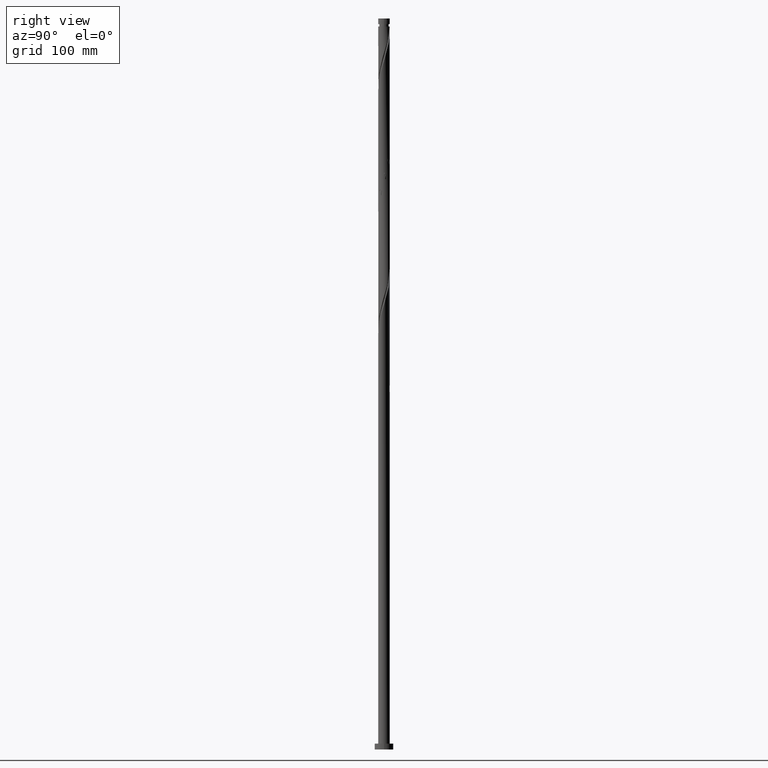
[diagram: clean part render]
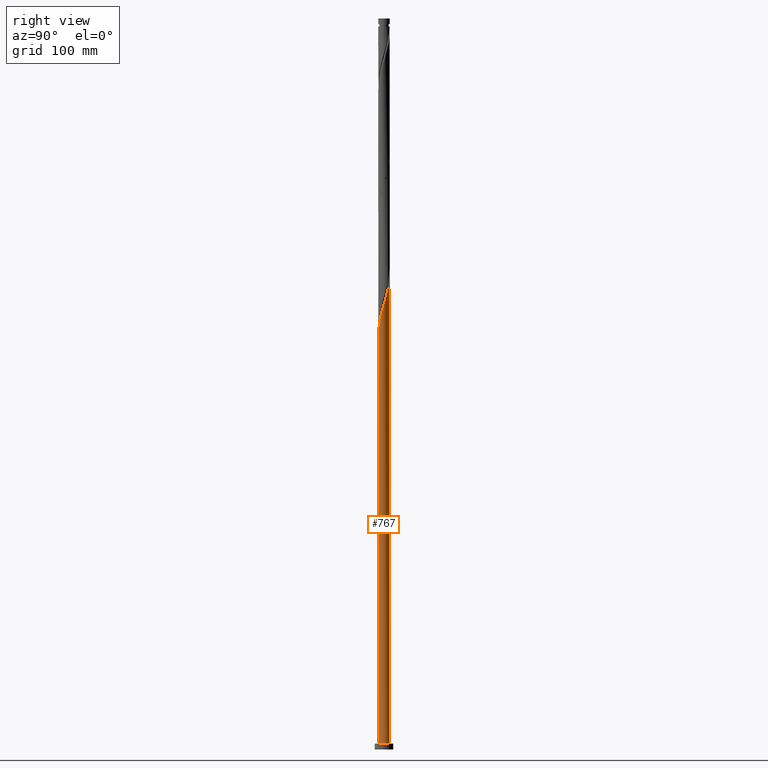
[diagram: same view with one face highlighted and labeled with its STEP entity id]
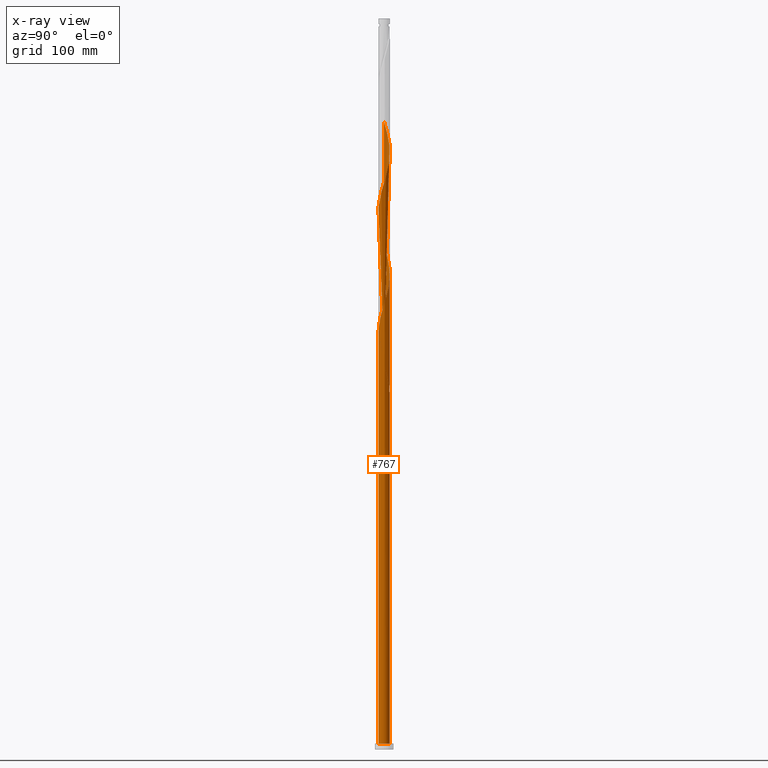
[diagram: x-ray of the same camera — body ghosted, the highlighted face saturated]
A machine part, right view. The second image highlights one B-rep face of the part: STEP entity #767.
The next image is the same camera in x-ray: the body ghosted, the highlighted face saturated — about 0% of this face is hidden behind the body in this view.
In plain terms, the highlighted cylindrical surface (bore or boss wall) has radius 5 mm, axis along (-0, -0, -1).
Its self-contained STEP definition (entity closure, byte-faithful):
#9 = CARTESIAN_POINT ( 'NONE',  ( -2.307797741308303952, 4.459678617185782734, 417.7733349521095079 ) ) ;
#15 = CARTESIAN_POINT ( 'NONE',  ( -4.829804191874033314, 1.293441714247733021, 536.6703937756391269 ) ) ;
#18 = CARTESIAN_POINT ( 'NONE',  ( 4.509898306035858617, -2.158892602519858706, 376.0821584815214464 ) ) ;
#28 = CARTESIAN_POINT ( 'NONE',  ( -0.3855890747245868111, -5.006594136618707225, 356.0086290697566938 ) ) ;
#59 = CARTESIAN_POINT ( 'NONE',  ( 3.762979039183500074, -3.324853761300999189, 371.4498055403449825 ) ) ;
#62 = ORIENTED_EDGE ( 'NONE', *, *, #1199, .F. ) ;
#68 = CARTESIAN_POINT ( 'NONE',  ( -5.020814560021389816, -0.07800600777514518636, 436.3027467168155908 ) ) ;
#78 = CARTESIAN_POINT ( 'NONE',  ( -4.509898306035859505, 2.158892602519858261, 428.5821584815213896 ) ) ;
#79 = CARTESIAN_POINT ( 'NONE',  ( -0.9949874371066272927, 4.900000000000007461, 308.1409820109331577 ) ) ;
#83 = CIRCLE ( 'NONE', #1964, 5.000000000000000888 ) ;
#92 = EDGE_CURVE ( 'NONE', #640, #1025, #2049, .T. ) ;
#93 = CARTESIAN_POINT ( 'NONE',  ( 0.9949874371066280698, -4.900000000000006573, 465.6409820109331008 ) ) ;
#99 = CARTESIAN_POINT ( 'NONE',  ( -3.310670521310491221, 3.746926833996858885, 323.5821584815213896 ) ) ;
#104 = CARTESIAN_POINT ( 'NONE',  ( -3.657874423950751464, -3.440148031986232979, 448.6556878932861423 ) ) ;
#114 = CARTESIAN_POINT ( 'NONE',  ( 3.310670521310499659, 3.746926833996863326, 502.6998055403448689 ) ) ;
#119 = VECTOR ( 'NONE', #225, 1000.000000000000000 ) ;
#146 = CARTESIAN_POINT ( 'NONE',  ( 4.653591125987692756, 1.886465853255867575, 389.9792173050507245 ) ) ;
#156 = CARTESIAN_POINT ( 'NONE',  ( 4.709949166430296152, -1.740988981301822447, 377.6262761285802299 ) ) ;
#157 = ORIENTED_EDGE ( 'NONE', *, *, #92, .T. ) ;
#160 = CARTESIAN_POINT ( 'NONE',  ( -5.000000000000010658, 2.957871199948856038E-15, 541.0427732362393272 ) ) ;
#166 = CARTESIAN_POINT ( 'NONE',  ( -5.000000000000007994, -0.2700999183963300188, 331.9466924682519107 ) ) ;
#173 = CARTESIAN_POINT ( 'NONE',  ( -3.657874423950751464, -3.440148031986232979, 343.6556878932861991 ) ) ;
#177 = EDGE_CURVE ( 'NONE', #640, #740, #1285, .T. ) ;
#211 = CARTESIAN_POINT ( 'NONE',  ( -4.653591125987692756, -1.886465853255866687, 337.4792173050508381 ) ) ;
#215 = EDGE_LOOP ( 'NONE', ( #1745, #849, #1785, #556, #1433, #784, #1494, #157, #62 ) ) ;
#222 = CARTESIAN_POINT ( 'NONE',  ( 3.762979039183500074, -3.324853761300999189, 476.4498055403449257 ) ) ;
#225 = DIRECTION ( 'NONE',  ( -0.000000000000000000, -0.000000000000000000, -1.000000000000000000 ) ) ;
#230 = CARTESIAN_POINT ( 'NONE',  ( 3.087966894742087298, -3.959687391745552620, 473.3615702462271315 ) ) ;
#241 = CARTESIAN_POINT ( 'NONE',  ( -0.9949874371066272927, 4.900000000000006573, 518.1409820109332713 ) ) ;
#252 = CARTESIAN_POINT ( 'NONE',  ( -4.949659217317769588, 0.8458944471936454823, 433.2145114226979672 ) ) ;
#258 = CARTESIAN_POINT ( 'NONE',  ( 0.5409355705206818632, 4.992199163887311109, 309.6850996579919411 ) ) ;
#263 = CARTESIAN_POINT ( 'NONE',  ( 4.920992084686811374, 0.9992500617070458890, 491.8909820109331577 ) ) ;
#285 = CIRCLE ( 'NONE', #1815, 5.000000000000000888 ) ;
#294 = VERTEX_POINT ( 'NONE', #1885 ) ;
#315 = CARTESIAN_POINT ( 'NONE',  ( 4.829804191874032426, -1.293441714247731911, 379.1703937756390133 ) ) ;
#319 = CARTESIAN_POINT ( 'NONE',  ( -4.509898306035859505, 2.158892602519858261, 533.5821584815213328 ) ) ;
#322 = CARTESIAN_POINT ( 'NONE',  ( 2.307797741308303952, -4.459678617185782734, 365.2733349521096216 ) ) ;
#330 = CARTESIAN_POINT ( 'NONE',  ( -1.298982946493230761, -4.850495550775359099, 352.9203937756390701 ) ) ;
#338 = CARTESIAN_POINT ( 'NONE',  ( -0.5409355705206825293, 4.992199163887320879, 411.5968643638742606 ) ) ;
#375 = CARTESIAN_POINT ( 'NONE',  ( 4.949659217317769588, -0.8458944471936451492, 380.7145114226977967 ) ) ;
#387 = CARTESIAN_POINT ( 'NONE',  ( 2.565804065323806338, 4.291462396243024280, 505.7880408344624925 ) ) ;
#397 = CARTESIAN_POINT ( 'NONE',  ( 4.653591125987692756, 1.886465853255867575, 494.9792173050507813 ) ) ;
#403 = DIRECTION ( 'NONE',  ( 1.000000000000000000, 0.000000000000000000, 0.000000000000000000 ) ) ;
#406 = CARTESIAN_POINT ( 'NONE',  ( 3.425472966962795685, -3.642270576523275238, 474.9056878932862560 ) ) ;
#412 = CARTESIAN_POINT ( 'NONE',  ( -0.8422860106089054000, 4.928544843697026501, 314.3174525991685186 ) ) ;
#418 = CARTESIAN_POINT ( 'NONE',  ( 4.309847445641426411, -2.576796223737892966, 479.5380408344625494 ) ) ;
#422 = CARTESIAN_POINT ( 'NONE',  ( 0.9949874371066290690, 4.899999999999999467, 308.1409820109331577 ) ) ;
#456 = CARTESIAN_POINT ( 'NONE',  ( -4.440654414424053620, 2.297953082997162610, 329.7586290697567506 ) ) ;
#468 = CARTESIAN_POINT ( 'NONE',  ( 1.878418522500438614, -4.633739726649237944, 363.7292173050508381 ) ) ;
#472 = CARTESIAN_POINT ( 'NONE',  ( -5.000000000000007994, 0.1922559394384287523, 540.3993674841793791 ) ) ;
#474 = CARTESIAN_POINT ( 'NONE',  ( -3.310670521310499215, -3.746926833996863326, 345.1998055403449825 ) ) ;
#480 = CARTESIAN_POINT ( 'NONE',  ( 1.298982946493228541, 4.850495550775359987, 405.4203937756391269 ) ) ;
#489 = CARTESIAN_POINT ( 'NONE',  ( 4.440654414424064278, 2.297953082997165719, 391.5233349521096784 ) ) ;
#507 = LINE ( 'NONE', #1154, #119 ) ;
#524 = CARTESIAN_POINT ( 'NONE',  ( 0.9949874371066280698, -4.900000000000006573, 360.6409820109332713 ) ) ;
#536 = CARTESIAN_POINT ( 'NONE',  ( 4.829804191874032426, -1.293441714247731911, 484.1703937756391269 ) ) ;
#539 = DIRECTION ( 'NONE',  ( 0.000000000000000000, -0.000000000000000000, -1.000000000000000000 ) ) ;
#550 = CARTESIAN_POINT ( 'NONE',  ( 0.3855890747245875327, 5.006594136618707225, 513.5086290697565801 ) ) ;
#556 = ORIENTED_EDGE ( 'NONE', *, *, #1725, .T. ) ;
#562 = CARTESIAN_POINT ( 'NONE',  ( -4.309847445641425523, 2.576796223737893410, 427.0380408344624925 ) ) ;
#569 = CARTESIAN_POINT ( 'NONE',  ( -2.565804065323801897, 4.291462396243016286, 320.4939231874037660 ) ) ;
#574 = CARTESIAN_POINT ( 'NONE',  ( -2.168141511977371039, -4.529219156478549557, 454.8321584815213328 ) ) ;
#575 = CARTESIAN_POINT ( 'NONE',  ( -4.829804191874033314, 1.293441714247733021, 326.6703937756390701 ) ) ;
#585 = CARTESIAN_POINT ( 'NONE',  ( -4.920992084686811374, -0.9992500617070465552, 439.3909820109331008 ) ) ;
#586 = CARTESIAN_POINT ( 'NONE',  ( -3.425472966962794352, 3.642270576523276127, 317.4056878932860286 ) ) ;
#620 = CARTESIAN_POINT ( 'NONE',  ( -3.942796063405592744, -3.074794172362347755, 342.1115702462273589 ) ) ;
#623 =( BOUNDED_CURVE ( )  B_SPLINE_CURVE ( 2, ( #762, #1904, #2019, #745, #1402, #2051, #456, #947, #1221, #1055, #99, #731, #569, #1211, #1549, #1863, #412, #752, #1692, #258, #422 ),
 .UNSPECIFIED., .F., .T. ) 
 B_SPLINE_CURVE_WITH_KNOTS ( ( 3, 2, 2, 2, 2, 2, 2, 2, 2, 2, 3 ),
 ( 0.9295293573162904943, 0.9338235294117647189, 0.9411764705882352811, 0.9485294117647058432, 0.9558823529411765163, 0.9632352941176470784, 0.9705882352941176405, 0.9779411764705882026, 0.9852941176470588758, 0.9926470588235294379, 1.000000000000000000 ),
 .UNSPECIFIED. ) 
 CURVE ( )  GEOMETRIC_REPRESENTATION_ITEM ( )  RATIONAL_B_SPLINE_CURVE ( ( 0.9072066346053203612, 0.9068261157890875612, 0.9090909090909587986, 0.9052128875409900521, 0.9090909090909587986, 0.9052128875409900521, 0.9090909090909587986, 0.9052128875409900521, 0.9090909090909587986, 0.9052128875409900521, 0.9090909090909587986, 0.9052128875409900521, 0.9090909090909587986, 0.9052128875409900521, 0.9090909090909587986, 0.9052128875409900521, 0.9090909090909587986, 0.9052128875409900521, 0.9090909090909587986, 0.9052128875409900521, 0.9090909090909587986 ) ) 
 REPRESENTATION_ITEM ( '' )  );
#633 = CARTESIAN_POINT ( 'NONE',  ( -2.697882318025195847, 4.209683004465667011, 419.3174525991683481 ) ) ;
#640 = VERTEX_POINT ( 'NONE', #1272 ) ;
#641 = CARTESIAN_POINT ( 'NONE',  ( 4.985236888669578370, -0.3839442197092513553, 382.2586290697568074 ) ) ;
#652 = CARTESIAN_POINT ( 'NONE',  ( -2.168141511977371039, -4.529219156478549557, 349.8321584815213328 ) ) ;
#687 = CARTESIAN_POINT ( 'NONE',  ( 1.733562229235301677, 4.689857353626955216, 403.8762761285801730 ) ) ;
#689 = DIRECTION ( 'NONE',  ( -1.000000000000000000, 0.000000000000000000, 0.000000000000000000 ) ) ;
#702 = CARTESIAN_POINT ( 'NONE',  ( -2.963466618670244745, -4.053705636007495450, 451.7439231874037091 ) ) ;
#709 = VERTEX_POINT ( 'NONE', #1302 ) ;
#714 = CARTESIAN_POINT ( 'NONE',  ( 4.440654414424064278, 2.297953082997165719, 496.5233349521096216 ) ) ;
#715 = CARTESIAN_POINT ( 'NONE',  ( -2.307797741308303952, 4.459678617185782734, 312.7733349521096216 ) ) ;
#725 = CARTESIAN_POINT ( 'NONE',  ( -2.307797741308303952, 4.459678617185782734, 522.7733349521096216 ) ) ;
#726 = CARTESIAN_POINT ( 'NONE',  ( -4.309847445641425523, 2.576796223737893410, 322.0380408344624357 ) ) ;
#731 = CARTESIAN_POINT ( 'NONE',  ( -2.963466618670239416, 4.053705636007489232, 322.0380408344626062 ) ) ;
#737 = CARTESIAN_POINT ( 'NONE',  ( 2.963466618670242525, 4.053705636007496338, 504.2439231874038796 ) ) ;
#740 = VERTEX_POINT ( 'NONE', #1952 ) ;
#745 = CARTESIAN_POINT ( 'NONE',  ( -4.920992084686805157, 0.9992500617070461111, 334.3909820109331577 ) ) ;
#750 = CARTESIAN_POINT ( 'NONE',  ( 1.733562229235301677, 4.689857353626955216, 508.8762761285801162 ) ) ;
#752 = CARTESIAN_POINT ( 'NONE',  ( -0.3855890747245842576, 5.006594136618700119, 312.7733349521096216 ) ) ;
#762 = CARTESIAN_POINT ( 'NONE',  ( -5.000000000000000888, -6.498353393827081133E-15, 337.7391907856272724 ) ) ;
#766 = AXIS2_PLACEMENT_3D ( 'NONE', #992, #539, #689 ) ;
#767 = ADVANCED_FACE ( 'NONE', ( #1470 ), #1920, .T. ) ;
#769 = CARTESIAN_POINT ( 'NONE',  ( -3.425472966962794352, 3.642270576523276127, 527.4056878932860855 ) ) ;
#784 = ORIENTED_EDGE ( 'NONE', *, *, #1072, .F. ) ;
#785 = CARTESIAN_POINT ( 'NONE',  ( 3.657874423950751464, 3.440148031986232535, 396.1556878932861423 ) ) ;
#795 = CARTESIAN_POINT ( 'NONE',  ( -0.9949874371066272927, 4.900000000000006573, 413.1409820109331577 ) ) ;
#802 = CARTESIAN_POINT ( 'NONE',  ( -3.762979039183500518, 3.324853761300999189, 528.9498055403448689 ) ) ;
#806 = CARTESIAN_POINT ( 'NONE',  ( 3.087966894742087298, -3.959687391745552620, 368.3615702462273021 ) ) ;
#817 = CARTESIAN_POINT ( 'NONE',  ( 1.449039303692575498, -4.807800836112694043, 362.1850996579919979 ) ) ;
#849 = ORIENTED_EDGE ( 'NONE', *, *, #1293, .F. ) ;
#857 = CARTESIAN_POINT ( 'NONE',  ( 4.920992084686811374, 0.9992500617070458890, 386.8909820109331577 ) ) ;
#868 = CARTESIAN_POINT ( 'NONE',  ( -4.829804191874033314, 1.293441714247733021, 431.6703937756390133 ) ) ;
#873 = CARTESIAN_POINT ( 'NONE',  ( 5.000000000000000888, 0.000000000000000000, 5.000000000000000000 ) ) ;
#879 = CARTESIAN_POINT ( 'NONE',  ( 4.949659217317769588, -0.8458944471936451492, 485.7145114226977967 ) ) ;
#880 = CARTESIAN_POINT ( 'NONE',  ( -4.709949166430296152, 1.740988981301821115, 325.1262761285802299 ) ) ;
#887 = CARTESIAN_POINT ( 'NONE',  ( -1.878418522500439947, 4.633739726649237944, 521.2292173050508381 ) ) ;
#899 = CARTESIAN_POINT ( 'NONE',  ( 3.657874423950751464, 3.440148031986232535, 501.1556878932861423 ) ) ;
#912 = CARTESIAN_POINT ( 'NONE',  ( 4.787291605337252953, 1.442857957481454845, 493.4350996579919979 ) ) ;
#915 = VERTEX_POINT ( 'NONE', #873 ) ;
#919 = CARTESIAN_POINT ( 'NONE',  ( -2.697882318025195847, 4.209683004465667011, 524.3174525991685186 ) ) ;
#947 = CARTESIAN_POINT ( 'NONE',  ( -4.227717702860424254, 2.709440312738462087, 328.2145114226979103 ) ) ;
#952 = CARTESIAN_POINT ( 'NONE',  ( -4.949659217317769588, 0.8458944471936454823, 538.2145114226977967 ) ) ;
#958 = CARTESIAN_POINT ( 'NONE',  ( 4.036413242412463021, -2.950824992519446521, 372.9939231874037660 ) ) ;
#965 = CARTESIAN_POINT ( 'NONE',  ( 4.787291605337252953, 1.442857957481454845, 388.4350996579919979 ) ) ;
#971 = CARTESIAN_POINT ( 'NONE',  ( 0.07767324789804790075, -4.999396650253013163, 357.5527467168154772 ) ) ;
#982 = CARTESIAN_POINT ( 'NONE',  ( -1.449039303692575054, 4.807800836112694043, 414.6850996579921116 ) ) ;
#992 = CARTESIAN_POINT ( 'NONE',  ( 0.000000000000000000, 0.000000000000000000, 308.1409820109331577 ) ) ;
#1016 = VERTEX_POINT ( 'NONE', #1641 ) ;
#1023 = CARTESIAN_POINT ( 'NONE',  ( 0.07767324789804790075, -4.999396650253013163, 462.5527467168155340 ) ) ;
#1025 = VERTEX_POINT ( 'NONE', #1315 ) ;
#1032 = CARTESIAN_POINT ( 'NONE',  ( -3.310670521310499215, -3.746926833996863326, 450.1998055403448689 ) ) ;
#1040 = DIRECTION ( 'NONE',  ( 0.000000000000000000, 0.000000000000000000, 1.000000000000000000 ) ) ;
#1043 = CARTESIAN_POINT ( 'NONE',  ( -1.298982946493230761, -4.850495550775359099, 457.9203937756390133 ) ) ;
#1051 = CARTESIAN_POINT ( 'NONE',  ( 4.036413242412463021, -2.950824992519446521, 477.9939231874038796 ) ) ;
#1055 = CARTESIAN_POINT ( 'NONE',  ( -3.657874423950744358, 3.440148031986227650, 325.1262761285802299 ) ) ;
#1060 = CARTESIAN_POINT ( 'NONE',  ( 4.970903322354101483, 0.5386280347410964398, 490.3468643638743174 ) ) ;
#1061 = CARTESIAN_POINT ( 'NONE',  ( -4.985236888669578370, 0.3839442197092495235, 329.7586290697568074 ) ) ;
#1072 = EDGE_CURVE ( 'NONE', #740, #1016, #507, .T. ) ;
#1081 = CARTESIAN_POINT ( 'NONE',  ( -4.036413242412463021, 2.950824992519446521, 320.4939231874037091 ) ) ;
#1082 = VECTOR ( 'NONE', #1541, 1000.000000000000000 ) ;
#1101 = CARTESIAN_POINT ( 'NONE',  ( -3.087966894742088186, 3.959687391745552620, 525.8615702462271884 ) ) ;
#1105 = CARTESIAN_POINT ( 'NONE',  ( 0.8422860106089081755, 4.928544843697034494, 406.9645114226979672 ) ) ;
#1114 = CARTESIAN_POINT ( 'NONE',  ( -2.565804065323806782, -4.291462396243023392, 348.2880408344626062 ) ) ;
#1126 = CARTESIAN_POINT ( 'NONE',  ( -3.425472966962794352, 3.642270576523276127, 422.4056878932862560 ) ) ;
#1135 = CARTESIAN_POINT ( 'NONE',  ( 3.942796063405590079, 3.074794172362349531, 394.6115702462273589 ) ) ;
#1150 = DIRECTION ( 'NONE',  ( -0.000000000000000000, -0.000000000000000000, -1.000000000000000000 ) ) ;
#1154 = CARTESIAN_POINT ( 'NONE',  ( -5.000000000000000888, 0.000000000000000000, 630.0000000000000000 ) ) ;
#1171 = CARTESIAN_POINT ( 'NONE',  ( -4.227717702860432247, -2.709440312738463863, 340.5674525991684050 ) ) ;
#1178 = LINE ( 'NONE', #1695, #1082 ) ;
#1181 = CARTESIAN_POINT ( 'NONE',  ( -4.787291605337252065, -1.442857957481456399, 440.9350996579920547 ) ) ;
#1191 = CARTESIAN_POINT ( 'NONE',  ( -0.07767324789804946894, 4.999396650253013163, 515.0527467168157045 ) ) ;
#1199 = EDGE_CURVE ( 'NONE', #294, #1025, #623, .T. ) ;
#1206 = CARTESIAN_POINT ( 'NONE',  ( -4.709949166430296152, 1.740988981301821115, 430.1262761285802867 ) ) ;
#1211 = CARTESIAN_POINT ( 'NONE',  ( -2.168141511977365710, 4.529219156478543340, 318.9498055403450394 ) ) ;
#1219 = CARTESIAN_POINT ( 'NONE',  ( -2.565804065323806782, -4.291462396243023392, 453.2880408344624925 ) ) ;
#1221 = CARTESIAN_POINT ( 'NONE',  ( -3.942796063405584750, 3.074794172362344646, 326.6703937756390701 ) ) ;
#1227 = CARTESIAN_POINT ( 'NONE',  ( -4.970903322354099707, -0.5386280347410958846, 437.8468643638742606 ) ) ;
#1228 = CARTESIAN_POINT ( 'NONE',  ( -4.509898306035859505, 2.158892602519858261, 323.5821584815211622 ) ) ;
#1258 = CARTESIAN_POINT ( 'NONE',  ( -4.709949166430296152, 1.740988981301821115, 535.1262761285801162 ) ) ;
#1263 = CARTESIAN_POINT ( 'NONE',  ( 2.697882318025196735, -4.209683004465666123, 366.8174525991684618 ) ) ;
#1269 =( BOUNDED_CURVE ( )  B_SPLINE_CURVE ( 2, ( #1922, #166, #1443, #1577, #2070, #211, #1755, #1171, #620, #173, #474, #1980, #1114, #652, #1492, #330, #1811, #28, #971, #1618, #524, #817, #468, #322, #1263, #806, #1914, #59, #958, #1944, #18, #156, #315, #375, #641, #1607, #1288, #857, #965, #146, #489, #1296, #1135, #785, #1423, #1586, #1772, #1932, #687, #480, #1105, #1453, #1746, #338, #795, #982, #1434, #9, #633, #1764, #1126, #1278, #1697, #562, #78, #1206, #868, #252, #2004, #68, #1227, #585, #1181, #2013, #2026, #1824, #1869, #104, #1032, #702, #1219, #574, #1847, #1043, #2036, #1341, #1023, #1525, #93, #1657, #1504, #1861, #1667, #230, #406, #222, #1051, #418, #1534, #1376, #536, #879, #1993, #1688, #1060, #263, #912, #397, #714, #1543, #1676, #899, #114, #737, #387, #1362, #750, #1353, #1515, #550, #1191, #1836, #241, #1385, #887, #725, #919, #1101, #769, #802, #2055, #1581, #319, #1258, #15, #952, #1908, #472, #160 ),
 .UNSPECIFIED., .F., .T. ) 
 B_SPLINE_CURVE_WITH_KNOTS ( ( 3, 2, 2, 2, 2, 2, 2, 2, 2, 2, 2, 2, 2, 2, 2, 2, 2, 2, 2, 2, 2, 2, 2, 2, 2, 2, 2, 2, 2, 2, 2, 2, 2, 2, 2, 2, 2, 2, 2, 2, 2, 2, 2, 2, 2, 2, 2, 2, 2, 2, 2, 2, 2, 2, 2, 2, 2, 2, 2, 2, 2, 2, 2, 2, 2, 2, 2, 2, 2, 3 ),
 ( 0.05452935731629052901, 0.05882352941176471894, 0.06617647058823528106, 0.07352941176470584317, 0.08088235294117651630, 0.08823529411764707842, 0.09558823529411764053, 0.1029411764705882026, 0.1102941176470588758, 0.1176470588235294379, 0.1250000000000000000, 0.1323529411764705621, 0.1397058823529411242, 0.1470588235294117974, 0.1544117647058823595, 0.1617647058823529216, 0.1691176470588234837, 0.1764705882352941568, 0.1838235294117647189, 0.1911764705882352811, 0.1985294117647058432, 0.2058823529411765163, 0.2132352941176470784, 0.2205882352941176405, 0.2279411764705882026, 0.2352941176470588758, 0.2426470588235294379, 0.2500000000000000000, 0.2573529411764705621, 0.2647058823529411242, 0.2720588235294117974, 0.2794117647058823595, 0.2867647058823529216, 0.2941176470588234837, 0.3014705882352941568, 0.3088235294117647189, 0.3161764705882352811, 0.3235294117647058432, 0.3308823529411765163, 0.3382352941176470784, 0.3455882352941176405, 0.3529411764705882026, 0.3602941176470588758, 0.3676470588235294379, 0.3750000000000000000, 0.3823529411764705621, 0.3897058823529411242, 0.3970588235294117974, 0.4044117647058823595, 0.4117647058823529216, 0.4191176470588234837, 0.4264705882352941568, 0.4338235294117647189, 0.4411764705882352811, 0.4485294117647058432, 0.4558823529411765163, 0.4632352941176470784, 0.4705882352941176405, 0.4779411764705882026, 0.4852941176470588758, 0.4926470588235294379, 0.5000000000000000000, 0.5073529411764705621, 0.5147058823529411242, 0.5220588235294116863, 0.5294117647058823595, 0.5367647058823529216, 0.5441176470588235947, 0.5514705882352941568, 0.5545293573162901613 ),
 .UNSPECIFIED. ) 
 CURVE ( )  GEOMETRIC_REPRESENTATION_ITEM ( )  RATIONAL_B_SPLINE_CURVE ( ( 0.9072066346053275776, 0.9068261157890947777, 0.9090909090909660151, 0.9052128875409971576, 0.9090909090909660151, 0.9052128875409971576, 0.9090909090909660151, 0.9052128875409971576, 0.9090909090909660151, 0.9052128875409971576, 0.9090909090909660151, 0.9052128875409971576, 0.9090909090909660151, 0.9052128875409971576, 0.9090909090909660151, 0.9052128875409971576, 0.9090909090909660151, 0.9052128875409971576, 0.9090909090909660151, 0.9052128875409971576, 0.9090909090909660151, 0.9052128875409971576, 0.9090909090909660151, 0.9052128875409971576, 0.9090909090909660151, 0.9052128875409971576, 0.9090909090909660151, 0.9052128875409971576, 0.9090909090909660151, 0.9052128875409971576, 0.9090909090909660151, 0.9052128875409971576, 0.9090909090909660151, 0.9052128875409971576, 0.9090909090909660151, 0.9052128875409971576, 0.9090909090909660151, 0.9052128875409971576, 0.9090909090909660151, 0.9052128875409971576, 0.9090909090909660151, 0.9052128875409971576, 0.9090909090909660151, 0.9052128875409971576, 0.9090909090909660151, 0.9052128875409971576, 0.9090909090909660151, 0.9052128875409971576, 0.9090909090909660151, 0.9052128875409971576, 0.9090909090909660151, 0.9052128875409971576, 0.9090909090909660151, 0.9052128875409971576, 0.9090909090909660151, 0.9052128875409971576, 0.9090909090909660151, 0.9052128875409971576, 0.9090909090909660151, 0.9052128875409971576, 0.9090909090909660151, 0.9052128875409971576, 0.9090909090909660151, 0.9052128875409971576, 0.9090909090909660151, 0.9052128875409971576, 0.9090909090909660151, 0.9052128875409971576, 0.9090909090909660151, 0.9052128875409971576, 0.9090909090909660151, 0.9052128875409971576, 0.9090909090909660151, 0.9052128875409971576, 0.9090909090909660151, 0.9052128875409971576, 0.9090909090909660151, 0.9052128875409971576, 0.9090909090909660151, 0.9052128875409971576, 0.9090909090909660151, 0.9052128875409971576, 0.9090909090909660151, 0.9052128875409971576, 0.9090909090909660151, 0.9052128875409971576, 0.9090909090909660151, 0.9052128875409971576, 0.9090909090909660151, 0.9052128875409971576, 0.9090909090909660151, 0.9052128875409971576, 0.9090909090909660151, 0.9052128875409971576, 0.9090909090909660151, 0.9052128875409971576, 0.9090909090909660151, 0.9052128875409971576, 0.9090909090909660151, 0.9052128875409971576, 0.9090909090909660151, 0.9052128875409971576, 0.9090909090909660151, 0.9052128875409971576, 0.9090909090909660151, 0.9052128875409971576, 0.9090909090909660151, 0.9052128875409971576, 0.9090909090909660151, 0.9052128875409971576, 0.9090909090909660151, 0.9052128875409971576, 0.9090909090909660151, 0.9052128875409971576, 0.9090909090909660151, 0.9052128875409971576, 0.9090909090909660151, 0.9052128875409971576, 0.9090909090909660151, 0.9052128875409971576, 0.9090909090909660151, 0.9052128875409971576, 0.9090909090909660151, 0.9052128875409971576, 0.9090909090909660151, 0.9052128875409971576, 0.9090909090909660151, 0.9052128875409971576, 0.9090909090909660151, 0.9052128875409971576, 0.9090909090909660151, 0.9052128875409971576, 0.9090909090909660151, 0.9052128875409971576, 0.9090909090909660151, 0.9052128875409971576, 0.9090909090909660151, 0.9074776808428686170, 0.9072066346053276886 ) ) 
 REPRESENTATION_ITEM ( '' )  );
#1272 = CARTESIAN_POINT ( 'NONE',  ( -0.9949874371066272927, 4.900000000000007461, 308.1409820109331577 ) ) ;
#1278 = CARTESIAN_POINT ( 'NONE',  ( -3.762979039183500518, 3.324853761300999189, 423.9498055403448689 ) ) ;
#1283 = DIRECTION ( 'NONE',  ( 1.000000000000000000, 0.000000000000000000, 0.000000000000000000 ) ) ;
#1285 =( BOUNDED_CURVE ( )  B_SPLINE_CURVE ( 2, ( #79, #1677, #2037, #715, #1712, #1386, #586, #1837, #1081, #726, #1228, #880, #575, #1354, #1061, #1698, #1516 ),
 .UNSPECIFIED., .F., .T. ) 
 B_SPLINE_CURVE_WITH_KNOTS ( ( 3, 2, 2, 2, 2, 2, 2, 2, 3 ),
 ( 0.000000000000000000, 0.007352941176470562112, 0.01470588235294112422, 0.02205882352941180083, 0.02941176470588235947, 0.03676470588235292158, 0.04411764705882349064, 0.05147058823529415683, 0.05452935731629053595 ),
 .UNSPECIFIED. ) 
 CURVE ( )  GEOMETRIC_REPRESENTATION_ITEM ( )  RATIONAL_B_SPLINE_CURVE ( ( 0.9090909090909660151, 0.9052128875409971576, 0.9090909090909660151, 0.9052128875409971576, 0.9090909090909660151, 0.9052128875409971576, 0.9090909090909660151, 0.9052128875409971576, 0.9090909090909660151, 0.9052128875409971576, 0.9090909090909660151, 0.9052128875409971576, 0.9090909090909660151, 0.9052128875409971576, 0.9090909090909660151, 0.9074776808428683950, 0.9072066346053275776 ) ) 
 REPRESENTATION_ITEM ( '' )  );
#1288 = CARTESIAN_POINT ( 'NONE',  ( 4.970903322354101483, 0.5386280347410964398, 385.3468643638743174 ) ) ;
#1293 = EDGE_CURVE ( 'NONE', #740, #709, #1269, .T. ) ;
#1296 = CARTESIAN_POINT ( 'NONE',  ( 4.227717702860432247, 2.709440312738463863, 393.0674525991684618 ) ) ;
#1302 = CARTESIAN_POINT ( 'NONE',  ( -5.000000000000010658, 2.957871199948856038E-15, 541.0427732362393272 ) ) ;
#1315 = CARTESIAN_POINT ( 'NONE',  ( 0.9949874371066290690, 4.899999999999999467, 308.1409820109331577 ) ) ;
#1323 = DIRECTION ( 'NONE',  ( -1.000000000000000000, 0.000000000000000000, 0.000000000000000000 ) ) ;
#1341 = CARTESIAN_POINT ( 'NONE',  ( -0.3855890747245868111, -5.006594136618707225, 461.0086290697568643 ) ) ;
#1353 = CARTESIAN_POINT ( 'NONE',  ( 1.298982946493228541, 4.850495550775359987, 510.4203937756390701 ) ) ;
#1354 = CARTESIAN_POINT ( 'NONE',  ( -4.949659217317769588, 0.8458944471936454823, 328.2145114226978535 ) ) ;
#1355 = EDGE_CURVE ( 'NONE', #915, #1016, #285, .T. ) ;
#1362 = CARTESIAN_POINT ( 'NONE',  ( 2.168141511977371927, 4.529219156478548669, 507.3321584815212191 ) ) ;
#1376 = CARTESIAN_POINT ( 'NONE',  ( 4.709949166430296152, -1.740988981301822447, 482.6262761285802867 ) ) ;
#1385 = CARTESIAN_POINT ( 'NONE',  ( -1.449039303692575054, 4.807800836112694043, 519.6850996579919411 ) ) ;
#1386 = CARTESIAN_POINT ( 'NONE',  ( -3.087966894742088186, 3.959687391745552620, 315.8615702462273589 ) ) ;
#1402 = CARTESIAN_POINT ( 'NONE',  ( -4.787291605337244071, 1.442857957481454845, 332.8468643638743742 ) ) ;
#1423 = CARTESIAN_POINT ( 'NONE',  ( 3.310670521310499659, 3.746926833996863326, 397.6998055403448689 ) ) ;
#1433 = ORIENTED_EDGE ( 'NONE', *, *, #1355, .T. ) ;
#1434 = CARTESIAN_POINT ( 'NONE',  ( -1.878418522500439947, 4.633739726649237944, 416.2292173050507245 ) ) ;
#1443 = CARTESIAN_POINT ( 'NONE',  ( -4.970903322354099707, -0.5386280347410958846, 332.8468643638744311 ) ) ;
#1453 = CARTESIAN_POINT ( 'NONE',  ( 0.3855890747245875327, 5.006594136618707225, 408.5086290697565801 ) ) ;
#1470 = FACE_OUTER_BOUND ( 'NONE', #215, .T. ) ;
#1492 = CARTESIAN_POINT ( 'NONE',  ( -1.733562229235299235, -4.689857353626956105, 351.3762761285801730 ) ) ;
#1494 = ORIENTED_EDGE ( 'NONE', *, *, #177, .F. ) ;
#1504 = CARTESIAN_POINT ( 'NONE',  ( 1.878418522500438614, -4.633739726649237944, 468.7292173050508950 ) ) ;
#1513 = CARTESIAN_POINT ( 'NONE',  ( 0.000000000000000000, 0.000000000000000000, 5.000000000000000000 ) ) ;
#1515 = CARTESIAN_POINT ( 'NONE',  ( 0.8422860106089081755, 4.928544843697034494, 511.9645114226977398 ) ) ;
#1516 = CARTESIAN_POINT ( 'NONE',  ( -5.000000000000008882, -6.946515696849582906E-15, 331.0427732362392135 ) ) ;
#1525 = CARTESIAN_POINT ( 'NONE',  ( 0.5409355705206830844, -4.992199163887320879, 464.0968643638743174 ) ) ;
#1534 = CARTESIAN_POINT ( 'NONE',  ( 4.509898306035858617, -2.158892602519858706, 481.0821584815213896 ) ) ;
#1541 = DIRECTION ( 'NONE',  ( -0.000000000000000000, -0.000000000000000000, -1.000000000000000000 ) ) ;
#1543 = CARTESIAN_POINT ( 'NONE',  ( 4.227717702860432247, 2.709440312738463863, 498.0674525991684050 ) ) ;
#1549 = CARTESIAN_POINT ( 'NONE',  ( -1.733562229235295460, 4.689857353626948111, 317.4056878932861991 ) ) ;
#1554 = DIRECTION ( 'NONE',  ( 0.000000000000000000, 0.000000000000000000, 1.000000000000000000 ) ) ;
#1567 = EDGE_CURVE ( 'NONE', #709, #294, #1178, .T. ) ;
#1577 = CARTESIAN_POINT ( 'NONE',  ( -4.920992084686811374, -0.9992500617070465552, 334.3909820109331008 ) ) ;
#1581 = CARTESIAN_POINT ( 'NONE',  ( -4.309847445641425523, 2.576796223737893410, 532.0380408344625494 ) ) ;
#1586 = CARTESIAN_POINT ( 'NONE',  ( 2.963466618670242525, 4.053705636007496338, 399.2439231874037091 ) ) ;
#1607 = CARTESIAN_POINT ( 'NONE',  ( 5.020814560021389816, 0.07800600777514697659, 383.8027467168154772 ) ) ;
#1618 = CARTESIAN_POINT ( 'NONE',  ( 0.5409355705206830844, -4.992199163887320879, 359.0968643638742037 ) ) ;
#1641 = CARTESIAN_POINT ( 'NONE',  ( -5.000000000000000888, 0.000000000000000000, 5.000000000000000000 ) ) ;
#1657 = CARTESIAN_POINT ( 'NONE',  ( 1.449039303692575498, -4.807800836112694043, 467.1850996579918842 ) ) ;
#1667 = CARTESIAN_POINT ( 'NONE',  ( 2.697882318025196735, -4.209683004465666123, 471.8174525991685186 ) ) ;
#1676 = CARTESIAN_POINT ( 'NONE',  ( 3.942796063405590079, 3.074794172362349531, 499.6115702462271884 ) ) ;
#1677 = CARTESIAN_POINT ( 'NONE',  ( -1.449039303692575054, 4.807800836112694043, 309.6850996579919979 ) ) ;
#1688 = CARTESIAN_POINT ( 'NONE',  ( 5.020814560021389816, 0.07800600777514697659, 488.8027467168155340 ) ) ;
#1692 = CARTESIAN_POINT ( 'NONE',  ( 0.07767324789804880281, 4.999396650253006946, 311.2292173050508950 ) ) ;
#1695 = CARTESIAN_POINT ( 'NONE',  ( -5.000000000000000888, 0.000000000000000000, 630.0000000000000000 ) ) ;
#1697 = CARTESIAN_POINT ( 'NONE',  ( -4.036413242412463021, 2.950824992519446521, 425.4939231874038796 ) ) ;
#1698 = CARTESIAN_POINT ( 'NONE',  ( -5.000000000000011546, 0.1922559394384057707, 330.3993674841795496 ) ) ;
#1712 = CARTESIAN_POINT ( 'NONE',  ( -2.697882318025195847, 4.209683004465667011, 314.3174525991685186 ) ) ;
#1725 = EDGE_CURVE ( 'NONE', #1016, #915, #83, .T. ) ;
#1741 = CARTESIAN_POINT ( 'NONE',  ( 0.000000000000000000, 0.000000000000000000, 5.000000000000000000 ) ) ;
#1745 = ORIENTED_EDGE ( 'NONE', *, *, #1567, .F. ) ;
#1746 = CARTESIAN_POINT ( 'NONE',  ( -0.07767324789804946894, 4.999396650253013163, 410.0527467168155340 ) ) ;
#1755 = CARTESIAN_POINT ( 'NONE',  ( -4.440654414424064278, -2.297953082997166163, 339.0233349521095647 ) ) ;
#1764 = CARTESIAN_POINT ( 'NONE',  ( -3.087966894742088186, 3.959687391745552620, 420.8615702462272452 ) ) ;
#1772 = CARTESIAN_POINT ( 'NONE',  ( 2.565804065323806338, 4.291462396243024280, 400.7880408344625494 ) ) ;
#1785 = ORIENTED_EDGE ( 'NONE', *, *, #1072, .T. ) ;
#1811 = CARTESIAN_POINT ( 'NONE',  ( -0.8422860106089078425, -4.928544843697032718, 354.4645114226979103 ) ) ;
#1815 = AXIS2_PLACEMENT_3D ( 'NONE', #1741, #1554, #1283 ) ;
#1824 = CARTESIAN_POINT ( 'NONE',  ( -4.227717702860432247, -2.709440312738463863, 445.5674525991683481 ) ) ;
#1836 = CARTESIAN_POINT ( 'NONE',  ( -0.5409355705206825293, 4.992199163887320879, 516.5968643638742606 ) ) ;
#1837 = CARTESIAN_POINT ( 'NONE',  ( -3.762979039183500518, 3.324853761300999189, 318.9498055403449825 ) ) ;
#1847 = CARTESIAN_POINT ( 'NONE',  ( -1.733562229235299235, -4.689857353626956105, 456.3762761285802299 ) ) ;
#1861 = CARTESIAN_POINT ( 'NONE',  ( 2.307797741308303952, -4.459678617185782734, 470.2733349521096784 ) ) ;
#1863 = CARTESIAN_POINT ( 'NONE',  ( -1.298982946493226320, 4.850495550775351106, 315.8615702462272452 ) ) ;
#1869 = CARTESIAN_POINT ( 'NONE',  ( -3.942796063405592744, -3.074794172362347755, 447.1115702462272452 ) ) ;
#1885 = CARTESIAN_POINT ( 'NONE',  ( -5.000000000000000888, -6.498353393827081133E-15, 337.7391907856272155 ) ) ;
#1904 = CARTESIAN_POINT ( 'NONE',  ( -5.000000000000001776, 0.2700999183963282424, 336.8352715536144046 ) ) ;
#1908 = CARTESIAN_POINT ( 'NONE',  ( -4.985236888669578370, 0.3839442197092495235, 539.7586290697568074 ) ) ;
#1914 = CARTESIAN_POINT ( 'NONE',  ( 3.425472966962795685, -3.642270576523275238, 369.9056878932860855 ) ) ;
#1920 = CYLINDRICAL_SURFACE ( 'NONE', #1928, 5.000000000000000888 ) ;
#1922 = CARTESIAN_POINT ( 'NONE',  ( -5.000000000000008882, -6.946515696849582906E-15, 331.0427732362392135 ) ) ;
#1928 = AXIS2_PLACEMENT_3D ( 'NONE', #1961, #1150, #1323 ) ;
#1932 = CARTESIAN_POINT ( 'NONE',  ( 2.168141511977371927, 4.529219156478548669, 402.3321584815212759 ) ) ;
#1944 = CARTESIAN_POINT ( 'NONE',  ( 4.309847445641426411, -2.576796223737892966, 374.5380408344624925 ) ) ;
#1952 = CARTESIAN_POINT ( 'NONE',  ( -5.000000000000008882, -6.946515696849582906E-15, 331.0427732362392135 ) ) ;
#1961 = CARTESIAN_POINT ( 'NONE',  ( 0.000000000000000000, 0.000000000000000000, 630.0000000000000000 ) ) ;
#1964 = AXIS2_PLACEMENT_3D ( 'NONE', #1513, #1040, #403 ) ;
#1980 = CARTESIAN_POINT ( 'NONE',  ( -2.963466618670244745, -4.053705636007495450, 346.7439231874037091 ) ) ;
#1993 = CARTESIAN_POINT ( 'NONE',  ( 4.985236888669578370, -0.3839442197092513553, 487.2586290697567506 ) ) ;
#2004 = CARTESIAN_POINT ( 'NONE',  ( -4.985236888669578370, 0.3839442197092495235, 434.7586290697567506 ) ) ;
#2013 = CARTESIAN_POINT ( 'NONE',  ( -4.653591125987692756, -1.886465853255866687, 442.4792173050507813 ) ) ;
#2019 = CARTESIAN_POINT ( 'NONE',  ( -4.970903322354092602, 0.5386280347410965508, 335.9350996579920547 ) ) ;
#2026 = CARTESIAN_POINT ( 'NONE',  ( -4.440654414424064278, -2.297953082997166163, 444.0233349521096216 ) ) ;
#2036 = CARTESIAN_POINT ( 'NONE',  ( -0.8422860106089078425, -4.928544843697032718, 459.4645114226977967 ) ) ;
#2037 = CARTESIAN_POINT ( 'NONE',  ( -1.878418522500439947, 4.633739726649237944, 311.2292173050508381 ) ) ;
#2049 = CIRCLE ( 'NONE', #766, 5.000000000000000888 ) ;
#2051 = CARTESIAN_POINT ( 'NONE',  ( -4.653591125987684762, 1.886465853255864245, 331.3027467168155340 ) ) ;
#2055 = CARTESIAN_POINT ( 'NONE',  ( -4.036413242412463021, 2.950824992519446521, 530.4939231874037660 ) ) ;
#2070 = CARTESIAN_POINT ( 'NONE',  ( -4.787291605337252065, -1.442857957481456399, 335.9350996579919411 ) ) ;